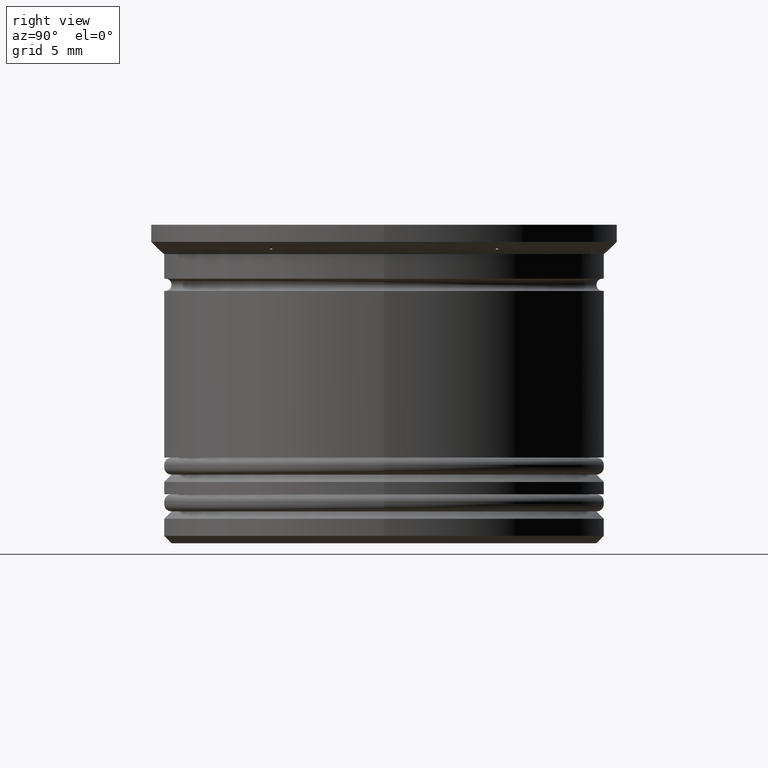
[diagram: clean part render]
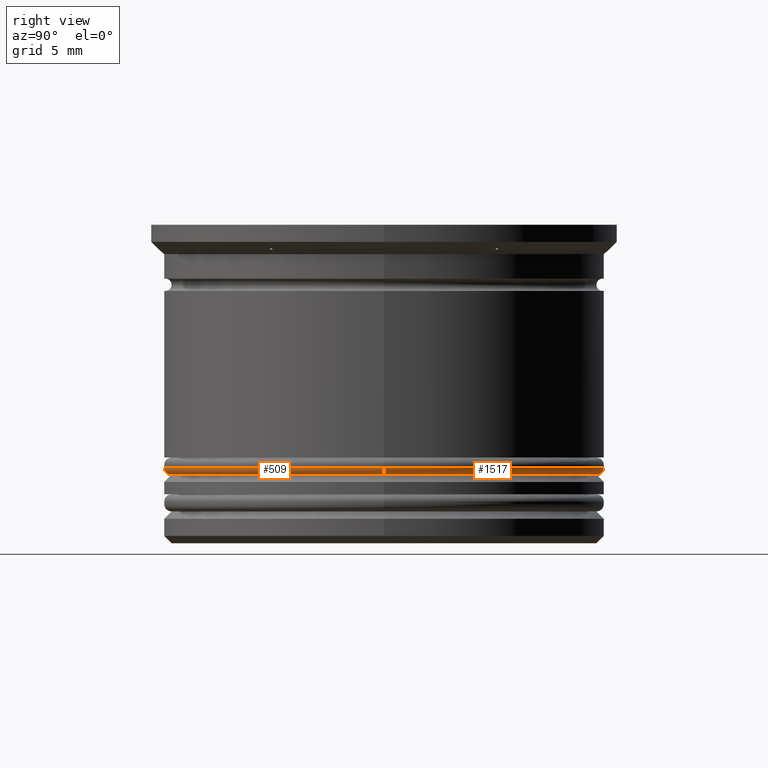
[diagram: same view with one multi-face feature highlighted, each face labeled with its STEP entity id]
A machine part, right view. The highlighted faces form ONE feature: a constant-radius fillet chain: 2 tangent blend faces with common blend radius 0.3 mm. The faces share edges in the B-rep.
Their STEP definitions:
[1] entity #509 (Torus):
#56 = DIRECTION ( 'NONE',  ( 0.000000000000000000, 0.000000000000000000, 1.000000000000000000 ) ) ;
#64 = ORIENTED_EDGE ( 'NONE', *, *, #1347, .T. ) ;
#66 = EDGE_CURVE ( 'NONE', #306, #505, #2017, .T. ) ;
#92 = AXIS2_PLACEMENT_3D ( 'NONE', #2091, #765, #1430 ) ;
#136 = AXIS2_PLACEMENT_3D ( 'NONE', #1267, #393, #729 ) ;
#141 = ORIENTED_EDGE ( 'NONE', *, *, #1703, .F. ) ;
#199 = TOROIDAL_SURFACE ( 'NONE', #486, 8.700000000000001066, 0.2999999999999999889 ) ;
#279 = CIRCLE ( 'NONE', #136, 0.2999999999999999334 ) ;
#306 = VERTEX_POINT ( 'NONE', #1963 ) ;
#322 = ORIENTED_EDGE ( 'NONE', *, *, #66, .F. ) ;
#342 = CARTESIAN_POINT ( 'NONE',  ( -8.700000000000001066, 1.083812417245407678E-15, -10.20000000000000639 ) ) ;
#393 = DIRECTION ( 'NONE',  ( 1.224646799147353207E-16, 1.000000000000000000, -0.000000000000000000 ) ) ;
#485 = AXIS2_PLACEMENT_3D ( 'NONE', #1544, #857, #1867 ) ;
#486 = AXIS2_PLACEMENT_3D ( 'NONE', #1114, #56, #938 ) ;
#505 = VERTEX_POINT ( 'NONE', #342 ) ;
#509 = ADVANCED_FACE ( 'NONE', ( #616 ), #199, .T. ) ;
#596 = VERTEX_POINT ( 'NONE', #2112 ) ;
#616 = FACE_OUTER_BOUND ( 'NONE', #1414, .T. ) ;
#676 = VERTEX_POINT ( 'NONE', #1494 ) ;
#719 = DIRECTION ( 'NONE',  ( 1.000000000000000000, 0.000000000000000000, 0.000000000000000000 ) ) ;
#729 = DIRECTION ( 'NONE',  ( -1.000000000000000000, 1.224646799147353207E-16, 0.000000000000000000 ) ) ;
#765 = DIRECTION ( 'NONE',  ( 0.000000000000000000, -1.000000000000000000, 0.000000000000000000 ) ) ;
#857 = DIRECTION ( 'NONE',  ( -0.000000000000000000, -0.000000000000000000, -1.000000000000000000 ) ) ;
#859 = ORIENTED_EDGE ( 'NONE', *, *, #1144, .F. ) ;
#938 = DIRECTION ( 'NONE',  ( 1.000000000000000000, 0.000000000000000000, 0.000000000000000000 ) ) ;
#1114 = CARTESIAN_POINT ( 'NONE',  ( 0.000000000000000000, 0.000000000000000000, -9.900000000000005684 ) ) ;
#1144 = EDGE_CURVE ( 'NONE', #676, #596, #1394, .T. ) ;
#1267 = CARTESIAN_POINT ( 'NONE',  ( -8.700000000000001066, 1.065442715258197446E-15, -9.900000000000005684 ) ) ;
#1347 = EDGE_CURVE ( 'NONE', #306, #596, #2133, .T. ) ;
#1394 = CIRCLE ( 'NONE', #1529, 9.000000000000001776 ) ;
#1414 = EDGE_LOOP ( 'NONE', ( #141, #322, #64, #859 ) ) ;
#1430 = DIRECTION ( 'NONE',  ( 0.000000000000000000, 0.000000000000000000, -1.000000000000000000 ) ) ;
#1494 = CARTESIAN_POINT ( 'NONE',  ( -9.000000000000001776, 1.102182119232617911E-15, -9.900000000000005684 ) ) ;
#1529 = AXIS2_PLACEMENT_3D ( 'NONE', #1707, #2015, #719 ) ;
#1544 = CARTESIAN_POINT ( 'NONE',  ( 0.000000000000000000, 0.000000000000000000, -10.20000000000000639 ) ) ;
#1703 = EDGE_CURVE ( 'NONE', #505, #676, #279, .T. ) ;
#1707 = CARTESIAN_POINT ( 'NONE',  ( 0.000000000000000000, 0.000000000000000000, -9.900000000000005684 ) ) ;
#1867 = DIRECTION ( 'NONE',  ( 1.000000000000000000, 0.000000000000000000, 0.000000000000000000 ) ) ;
#1963 = CARTESIAN_POINT ( 'NONE',  ( 8.700000000000001066, 0.000000000000000000, -10.20000000000000639 ) ) ;
#2015 = DIRECTION ( 'NONE',  ( 0.000000000000000000, 0.000000000000000000, 1.000000000000000000 ) ) ;
#2017 = CIRCLE ( 'NONE', #485, 8.700000000000001066 ) ;
#2091 = CARTESIAN_POINT ( 'NONE',  ( 8.700000000000001066, 0.000000000000000000, -9.900000000000005684 ) ) ;
#2112 = CARTESIAN_POINT ( 'NONE',  ( 9.000000000000001776, 0.000000000000000000, -9.900000000000005684 ) ) ;
#2133 = CIRCLE ( 'NONE', #92, 0.2999999999999999334 ) ;
[2] entity #1517 (Torus):
#8 = CARTESIAN_POINT ( 'NONE',  ( 0.000000000000000000, 0.000000000000000000, -9.900000000000005684 ) ) ;
#28 = AXIS2_PLACEMENT_3D ( 'NONE', #8, #865, #1518 ) ;
#54 = AXIS2_PLACEMENT_3D ( 'NONE', #2081, #1402, #1609 ) ;
#92 = AXIS2_PLACEMENT_3D ( 'NONE', #2091, #765, #1430 ) ;
#136 = AXIS2_PLACEMENT_3D ( 'NONE', #1267, #393, #729 ) ;
#233 = CIRCLE ( 'NONE', #412, 8.700000000000001066 ) ;
#279 = CIRCLE ( 'NONE', #136, 0.2999999999999999334 ) ;
#306 = VERTEX_POINT ( 'NONE', #1963 ) ;
#342 = CARTESIAN_POINT ( 'NONE',  ( -8.700000000000001066, 1.083812417245407678E-15, -10.20000000000000639 ) ) ;
#382 = EDGE_CURVE ( 'NONE', #505, #306, #233, .T. ) ;
#393 = DIRECTION ( 'NONE',  ( 1.224646799147353207E-16, 1.000000000000000000, -0.000000000000000000 ) ) ;
#412 = AXIS2_PLACEMENT_3D ( 'NONE', #1885, #702, #1342 ) ;
#505 = VERTEX_POINT ( 'NONE', #342 ) ;
#596 = VERTEX_POINT ( 'NONE', #2112 ) ;
#631 = ORIENTED_EDGE ( 'NONE', *, *, #1347, .F. ) ;
#676 = VERTEX_POINT ( 'NONE', #1494 ) ;
#702 = DIRECTION ( 'NONE',  ( -0.000000000000000000, -0.000000000000000000, -1.000000000000000000 ) ) ;
#729 = DIRECTION ( 'NONE',  ( -1.000000000000000000, 1.224646799147353207E-16, 0.000000000000000000 ) ) ;
#765 = DIRECTION ( 'NONE',  ( 0.000000000000000000, -1.000000000000000000, 0.000000000000000000 ) ) ;
#865 = DIRECTION ( 'NONE',  ( 0.000000000000000000, 0.000000000000000000, 1.000000000000000000 ) ) ;
#983 = TOROIDAL_SURFACE ( 'NONE', #28, 8.700000000000001066, 0.2999999999999999889 ) ;
#1154 = EDGE_LOOP ( 'NONE', ( #1492, #1235, #1505, #631 ) ) ;
#1213 = EDGE_CURVE ( 'NONE', #596, #676, #1812, .T. ) ;
#1215 = FACE_OUTER_BOUND ( 'NONE', #1154, .T. ) ;
#1235 = ORIENTED_EDGE ( 'NONE', *, *, #1703, .T. ) ;
#1267 = CARTESIAN_POINT ( 'NONE',  ( -8.700000000000001066, 1.065442715258197446E-15, -9.900000000000005684 ) ) ;
#1342 = DIRECTION ( 'NONE',  ( 1.000000000000000000, 0.000000000000000000, 0.000000000000000000 ) ) ;
#1347 = EDGE_CURVE ( 'NONE', #306, #596, #2133, .T. ) ;
#1402 = DIRECTION ( 'NONE',  ( 0.000000000000000000, 0.000000000000000000, 1.000000000000000000 ) ) ;
#1430 = DIRECTION ( 'NONE',  ( 0.000000000000000000, 0.000000000000000000, -1.000000000000000000 ) ) ;
#1492 = ORIENTED_EDGE ( 'NONE', *, *, #382, .F. ) ;
#1494 = CARTESIAN_POINT ( 'NONE',  ( -9.000000000000001776, 1.102182119232617911E-15, -9.900000000000005684 ) ) ;
#1505 = ORIENTED_EDGE ( 'NONE', *, *, #1213, .F. ) ;
#1517 = ADVANCED_FACE ( 'NONE', ( #1215 ), #983, .T. ) ;
#1518 = DIRECTION ( 'NONE',  ( 1.000000000000000000, 0.000000000000000000, 0.000000000000000000 ) ) ;
#1609 = DIRECTION ( 'NONE',  ( 1.000000000000000000, 0.000000000000000000, 0.000000000000000000 ) ) ;
#1703 = EDGE_CURVE ( 'NONE', #505, #676, #279, .T. ) ;
#1812 = CIRCLE ( 'NONE', #54, 9.000000000000001776 ) ;
#1885 = CARTESIAN_POINT ( 'NONE',  ( 0.000000000000000000, 0.000000000000000000, -10.20000000000000639 ) ) ;
#1963 = CARTESIAN_POINT ( 'NONE',  ( 8.700000000000001066, 0.000000000000000000, -10.20000000000000639 ) ) ;
#2081 = CARTESIAN_POINT ( 'NONE',  ( 0.000000000000000000, 0.000000000000000000, -9.900000000000005684 ) ) ;
#2091 = CARTESIAN_POINT ( 'NONE',  ( 8.700000000000001066, 0.000000000000000000, -9.900000000000005684 ) ) ;
#2112 = CARTESIAN_POINT ( 'NONE',  ( 9.000000000000001776, 0.000000000000000000, -9.900000000000005684 ) ) ;
#2133 = CIRCLE ( 'NONE', #92, 0.2999999999999999334 ) ;